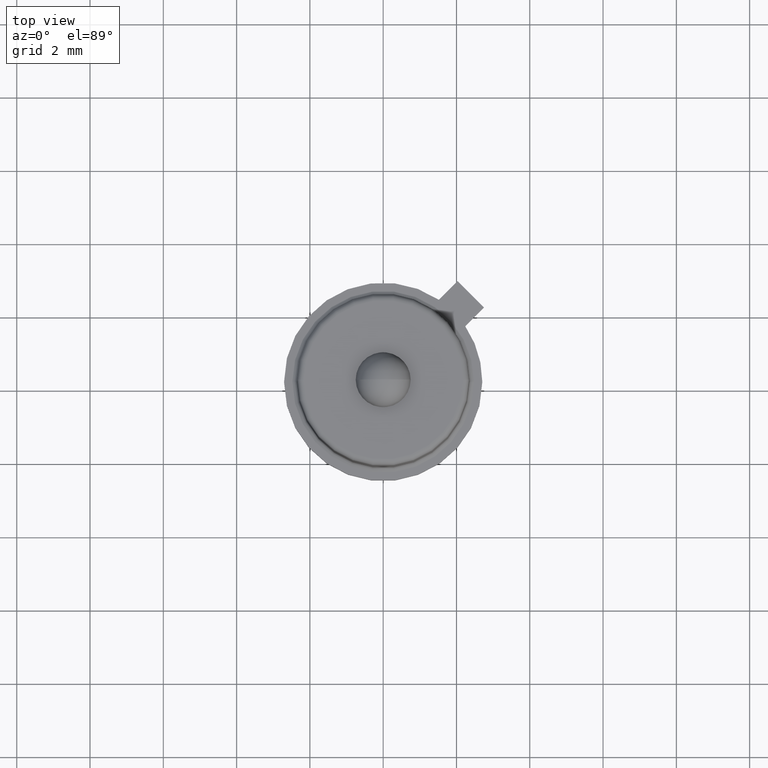
[diagram: clean part render]
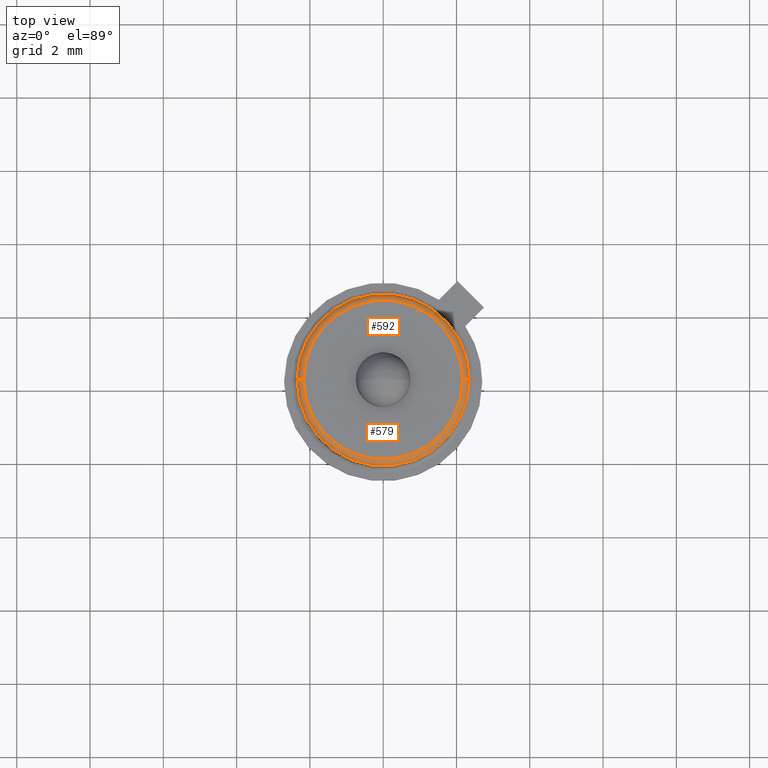
[diagram: same view with one multi-face feature highlighted, each face labeled with its STEP entity id]
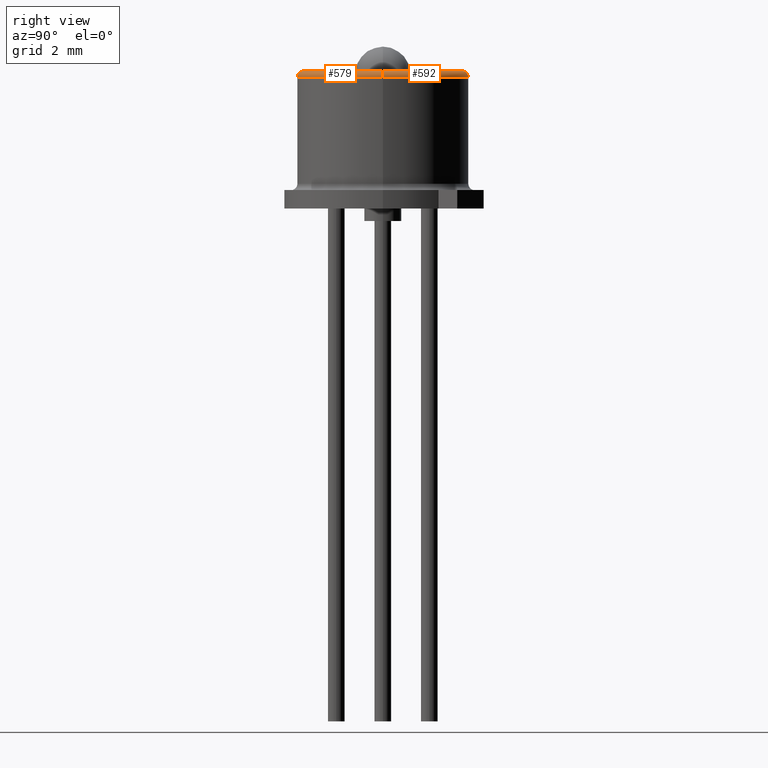
[diagram: same view with one multi-face feature highlighted, each face labeled with its STEP entity id]
A machine part, top view. The highlighted faces form ONE feature: a constant-radius fillet chain: 2 tangent blend faces with common blend radius 0.1778 mm. The faces share edges in the B-rep.
A second angle (right view) of the same feature is appended — it is thin or edge-on in the first view.
Their STEP definitions:
[1] entity #579 (Torus):
#96 = ORIENTED_EDGE ( 'NONE', *, *, #650, .F. ) ;
#97 = ORIENTED_EDGE ( 'NONE', *, *, #611, .T. ) ;
#98 = ORIENTED_EDGE ( 'NONE', *, *, #626, .T. ) ;
#99 = ORIENTED_EDGE ( 'NONE', *, *, #612, .F. ) ;
#173 = VERTEX_POINT ( 'NONE', #1527 ) ;
#174 = VERTEX_POINT ( 'NONE', #1528 ) ;
#177 = VERTEX_POINT ( 'NONE', #1531 ) ;
#178 = VERTEX_POINT ( 'NONE', #1532 ) ;
#231 = EDGE_LOOP ( 'NONE', ( #96, #97, #98, #99 ) ) ;
#516 = CARTESIAN_POINT ( 'NONE',  ( 0.0000000000000000000, 0.0000000000000000000, 0.1409999959614064700 ) ) ;
#525 = DIRECTION ( 'NONE',  ( -0.0000000000000000000, -0.0000000000000000000, -1.000000000000000000 ) ) ;
#526 = DIRECTION ( 'NONE',  ( -1.000000000000000000, 0.0000000000000000000, 0.0000000000000000000 ) ) ;
#579 = ADVANCED_FACE ( 'NONE', ( #802 ), #807, .T. ) ;
#611 = EDGE_CURVE ( 'NONE', #178, #177, #1280, .T. ) ;
#612 = EDGE_CURVE ( 'NONE', #174, #173, #1281, .T. ) ;
#626 = EDGE_CURVE ( 'NONE', #177, #173, #1296, .T. ) ;
#650 = EDGE_CURVE ( 'NONE', #178, #174, #1330, .T. ) ;
#802 = FACE_OUTER_BOUND ( 'NONE', #231, .T. ) ;
#807 = TOROIDAL_SURFACE ( 'NONE', #883, 0.08549999999999997900, 0.007000000000000003600 ) ;
#883 = AXIS2_PLACEMENT_3D ( 'NONE', #516, #525, #526 ) ;
#942 = AXIS2_PLACEMENT_3D ( 'NONE', #1117, #1118, #1119 ) ;
#943 = AXIS2_PLACEMENT_3D ( 'NONE', #1120, #1121, #1122 ) ;
#957 = AXIS2_PLACEMENT_3D ( 'NONE', #1164, #1165, #1166 ) ;
#1117 = CARTESIAN_POINT ( 'NONE',  ( 0.0000000000000000000, 0.0000000000000000000, 0.1479999959614065100 ) ) ;
#1118 = DIRECTION ( 'NONE',  ( -0.0000000000000000000, -0.0000000000000000000, -1.000000000000000000 ) ) ;
#1119 = DIRECTION ( 'NONE',  ( -1.000000000000000000, 0.0000000000000000000, 0.0000000000000000000 ) ) ;
#1120 = CARTESIAN_POINT ( 'NONE',  ( 0.0000000000000000000, 0.0000000000000000000, 0.1409999959614064700 ) ) ;
#1121 = DIRECTION ( 'NONE',  ( -0.0000000000000000000, -0.0000000000000000000, -1.000000000000000000 ) ) ;
#1122 = DIRECTION ( 'NONE',  ( -1.000000000000000000, 0.0000000000000000000, 0.0000000000000000000 ) ) ;
#1164 = CARTESIAN_POINT ( 'NONE',  ( -0.08549999999999997900, 0.0000000000000000000, 0.1409999959614064700 ) ) ;
#1165 = DIRECTION ( 'NONE',  ( 0.0000000000000000000, -1.000000000000000000, 0.0000000000000000000 ) ) ;
#1166 = DIRECTION ( 'NONE',  ( 0.0000000000000000000, 0.0000000000000000000, -1.000000000000000000 ) ) ;
#1280 = CIRCLE ( 'NONE', #942, 0.08549999999999997900 ) ;
#1281 = CIRCLE ( 'NONE', #943, 0.09249999999999998500 ) ;
#1296 = CIRCLE ( 'NONE', #957, 0.007000000000000003600 ) ;
#1330 = CIRCLE ( 'NONE', #1357, 0.007000000000000003600 ) ;
#1357 = AXIS2_PLACEMENT_3D ( 'NONE', #1374, #1375, #1376 ) ;
#1374 = CARTESIAN_POINT ( 'NONE',  ( 0.08549999999999997900, 1.047073013270986800E-017, 0.1409999959614064700 ) ) ;
#1375 = DIRECTION ( 'NONE',  ( -1.224646799147353200E-016, 1.000000000000000000, 0.0000000000000000000 ) ) ;
#1376 = DIRECTION ( 'NONE',  ( -1.000000000000000000, -1.224646799147352000E-016, 0.0000000000000000000 ) ) ;
#1527 = CARTESIAN_POINT ( 'NONE',  ( -0.09249999999999998500, 0.0000000000000000000, 0.1409999959614064700 ) ) ;
#1528 = CARTESIAN_POINT ( 'NONE',  ( 0.09249999999999998500, 1.132798289211301200E-017, 0.1409999959614064700 ) ) ;
#1531 = CARTESIAN_POINT ( 'NONE',  ( -0.08549999999999997900, 0.0000000000000000000, 0.1479999959614065100 ) ) ;
#1532 = CARTESIAN_POINT ( 'NONE',  ( 0.08549999999999997900, 1.089935651241144100E-017, 0.1479999959614065100 ) ) ;
[2] entity #592 (Torus):
#28 = ORIENTED_EDGE ( 'NONE', *, *, #652, .T. ) ;
#29 = ORIENTED_EDGE ( 'NONE', *, *, #650, .T. ) ;
#30 = ORIENTED_EDGE ( 'NONE', *, *, #654, .F. ) ;
#31 = ORIENTED_EDGE ( 'NONE', *, *, #626, .F. ) ;
#173 = VERTEX_POINT ( 'NONE', #1527 ) ;
#174 = VERTEX_POINT ( 'NONE', #1528 ) ;
#177 = VERTEX_POINT ( 'NONE', #1531 ) ;
#178 = VERTEX_POINT ( 'NONE', #1532 ) ;
#217 = EDGE_LOOP ( 'NONE', ( #28, #29, #30, #31 ) ) ;
#592 = ADVANCED_FACE ( 'NONE', ( #1263 ), #1268, .T. ) ;
#626 = EDGE_CURVE ( 'NONE', #177, #173, #1296, .T. ) ;
#650 = EDGE_CURVE ( 'NONE', #178, #174, #1330, .T. ) ;
#652 = EDGE_CURVE ( 'NONE', #177, #178, #1333, .T. ) ;
#654 = EDGE_CURVE ( 'NONE', #173, #174, #1332, .T. ) ;
#932 = AXIS2_PLACEMENT_3D ( 'NONE', #1080, #1089, #1090 ) ;
#957 = AXIS2_PLACEMENT_3D ( 'NONE', #1164, #1165, #1166 ) ;
#1080 = CARTESIAN_POINT ( 'NONE',  ( 0.0000000000000000000, 0.0000000000000000000, 0.1409999959614064700 ) ) ;
#1089 = DIRECTION ( 'NONE',  ( -0.0000000000000000000, -0.0000000000000000000, -1.000000000000000000 ) ) ;
#1090 = DIRECTION ( 'NONE',  ( -1.000000000000000000, 0.0000000000000000000, 0.0000000000000000000 ) ) ;
#1164 = CARTESIAN_POINT ( 'NONE',  ( -0.08549999999999997900, 0.0000000000000000000, 0.1409999959614064700 ) ) ;
#1165 = DIRECTION ( 'NONE',  ( 0.0000000000000000000, -1.000000000000000000, 0.0000000000000000000 ) ) ;
#1166 = DIRECTION ( 'NONE',  ( 0.0000000000000000000, 0.0000000000000000000, -1.000000000000000000 ) ) ;
#1263 = FACE_OUTER_BOUND ( 'NONE', #217, .T. ) ;
#1268 = TOROIDAL_SURFACE ( 'NONE', #932, 0.08549999999999997900, 0.007000000000000003600 ) ;
#1296 = CIRCLE ( 'NONE', #957, 0.007000000000000003600 ) ;
#1330 = CIRCLE ( 'NONE', #1357, 0.007000000000000003600 ) ;
#1332 = CIRCLE ( 'NONE', #1360, 0.09249999999999998500 ) ;
#1333 = CIRCLE ( 'NONE', #1359, 0.08549999999999997900 ) ;
#1357 = AXIS2_PLACEMENT_3D ( 'NONE', #1374, #1375, #1376 ) ;
#1359 = AXIS2_PLACEMENT_3D ( 'NONE', #1382, #1383, #1384 ) ;
#1360 = AXIS2_PLACEMENT_3D ( 'NONE', #1386, #1387, #1388 ) ;
#1374 = CARTESIAN_POINT ( 'NONE',  ( 0.08549999999999997900, 1.047073013270986800E-017, 0.1409999959614064700 ) ) ;
#1375 = DIRECTION ( 'NONE',  ( -1.224646799147353200E-016, 1.000000000000000000, 0.0000000000000000000 ) ) ;
#1376 = DIRECTION ( 'NONE',  ( -1.000000000000000000, -1.224646799147352000E-016, 0.0000000000000000000 ) ) ;
#1382 = CARTESIAN_POINT ( 'NONE',  ( 0.0000000000000000000, 0.0000000000000000000, 0.1479999959614065100 ) ) ;
#1383 = DIRECTION ( 'NONE',  ( -0.0000000000000000000, -0.0000000000000000000, -1.000000000000000000 ) ) ;
#1384 = DIRECTION ( 'NONE',  ( -1.000000000000000000, 0.0000000000000000000, 0.0000000000000000000 ) ) ;
#1386 = CARTESIAN_POINT ( 'NONE',  ( 0.0000000000000000000, 0.0000000000000000000, 0.1409999959614064700 ) ) ;
#1387 = DIRECTION ( 'NONE',  ( -0.0000000000000000000, -0.0000000000000000000, -1.000000000000000000 ) ) ;
#1388 = DIRECTION ( 'NONE',  ( -1.000000000000000000, 0.0000000000000000000, 0.0000000000000000000 ) ) ;
#1527 = CARTESIAN_POINT ( 'NONE',  ( -0.09249999999999998500, 0.0000000000000000000, 0.1409999959614064700 ) ) ;
#1528 = CARTESIAN_POINT ( 'NONE',  ( 0.09249999999999998500, 1.132798289211301200E-017, 0.1409999959614064700 ) ) ;
#1531 = CARTESIAN_POINT ( 'NONE',  ( -0.08549999999999997900, 0.0000000000000000000, 0.1479999959614065100 ) ) ;
#1532 = CARTESIAN_POINT ( 'NONE',  ( 0.08549999999999997900, 1.089935651241144100E-017, 0.1479999959614065100 ) ) ;